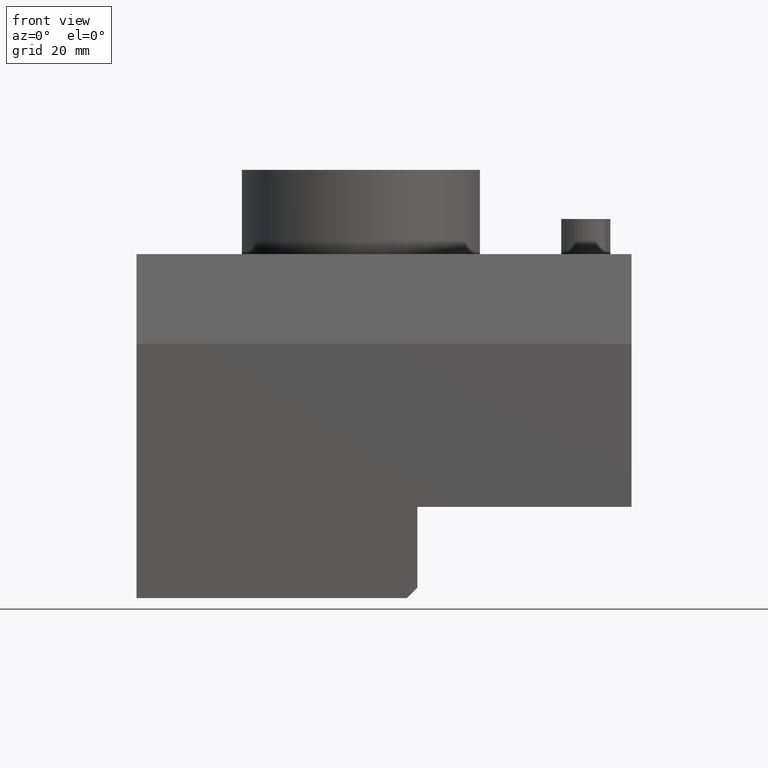
[diagram: clean part render]
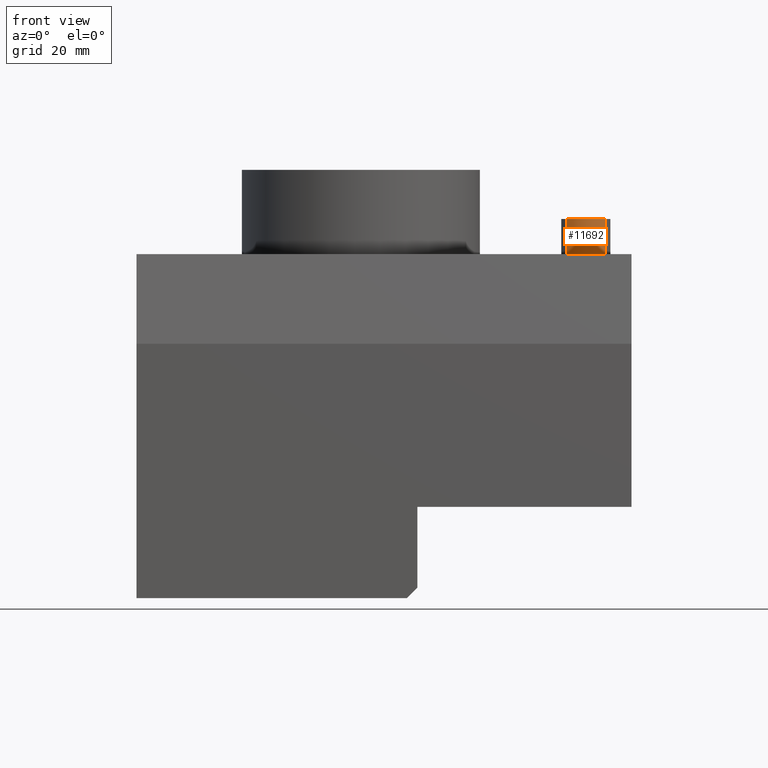
[diagram: same view with one face highlighted and labeled with its STEP entity id]
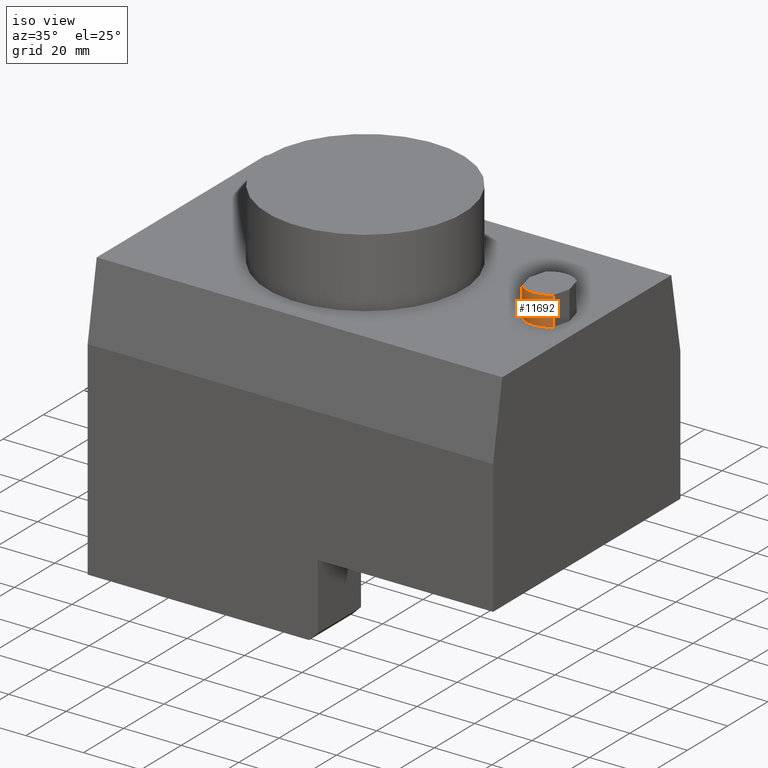
[diagram: same view with one face highlighted and labeled with its STEP entity id]
A machine part, front view. The second image highlights one B-rep face of the part: STEP entity #11692.
A second angle (iso view) of the same face is appended — the face is thin or edge-on in the first view.
In plain terms, the highlighted cylindrical surface (edge-blend (fillet) strip) has radius 8 mm, axis along (0, 0, 1).
Its self-contained STEP definition (entity closure, byte-faithful):
#6519 = PLANE('',#6520);
#6520 = AXIS2_PLACEMENT_3D('',#6521,#6522,#6523);
#6521 = CARTESIAN_POINT('',(-64.,-42.,6.490409630726E-015));
#6522 = DIRECTION('',(0.E+000,0.E+000,-1.));
#6523 = DIRECTION('',(1.,0.E+000,0.E+000));
#6544 = VERTEX_POINT('',#6545);
#6545 = CARTESIAN_POINT('',(69.42443310456,-5.880095704507,
    6.490409630726E-015));
#6559 = PLANE('',#6560);
#6560 = AXIS2_PLACEMENT_3D('',#6561,#6562,#6563);
#6561 = CARTESIAN_POINT('',(71.,1.355252715607E-016,10.));
#6562 = DIRECTION('',(0.965925826289,-0.258819045103,0.E+000));
#6563 = DIRECTION('',(0.258819045103,0.965925826289,0.E+000));
#6571 = EDGE_CURVE('',#6544,#6572,#6574,.T.);
#6572 = VERTEX_POINT('',#6573);
#6573 = CARTESIAN_POINT('',(58.57556689544,-5.880095704507,
    6.490409630726E-015));
#6574 = SURFACE_CURVE('',#6575,(#6580,#6587),.PCURVE_S1.);
#6575 = CIRCLE('',#6576,8.);
#6576 = AXIS2_PLACEMENT_3D('',#6577,#6578,#6579);
#6577 = CARTESIAN_POINT('',(64.,0.E+000,6.490409630726E-015));
#6578 = DIRECTION('',(-0.E+000,-0.E+000,-1.));
#6579 = DIRECTION('',(-1.,0.E+000,0.E+000));
#6580 = PCURVE('',#6519,#6581);
#6581 = DEFINITIONAL_REPRESENTATION('',(#6582),#6586);
#6582 = CIRCLE('',#6583,8.);
#6583 = AXIS2_PLACEMENT_2D('',#6584,#6585);
#6584 = CARTESIAN_POINT('',(128.,-42.));
#6585 = DIRECTION('',(-1.,0.E+000));
#6586 = ( GEOMETRIC_REPRESENTATION_CONTEXT(2) 
PARAMETRIC_REPRESENTATION_CONTEXT() REPRESENTATION_CONTEXT('2D SPACE',''
  ) );
#6587 = PCURVE('',#6588,#6593);
#6588 = CYLINDRICAL_SURFACE('',#6589,8.);
#6589 = AXIS2_PLACEMENT_3D('',#6590,#6591,#6592);
#6590 = CARTESIAN_POINT('',(64.,0.E+000,10.));
#6591 = DIRECTION('',(0.E+000,0.E+000,1.));
#6592 = DIRECTION('',(1.,0.E+000,0.E+000));
#6593 = DEFINITIONAL_REPRESENTATION('',(#6594),#6597);
#6594 = B_SPLINE_CURVE_WITH_KNOTS('',1,(#6595,#6596),.UNSPECIFIED.,.F.,
  .F.,(2,2),(3.967276977634,5.457500983135),.PIECEWISE_BEZIER_KNOTS.);
#6595 = CARTESIAN_POINT('',(5.457500983135,-10.));
#6596 = CARTESIAN_POINT('',(3.967276977634,-10.));
#6597 = ( GEOMETRIC_REPRESENTATION_CONTEXT(2) 
PARAMETRIC_REPRESENTATION_CONTEXT() REPRESENTATION_CONTEXT('2D SPACE',''
  ) );
#6615 = PLANE('',#6616);
#6616 = AXIS2_PLACEMENT_3D('',#6617,#6618,#6619);
#6617 = CARTESIAN_POINT('',(57.,0.E+000,10.));
#6618 = DIRECTION('',(-0.965925826289,-0.258819045103,0.E+000));
#6619 = DIRECTION('',(0.258819045103,-0.965925826289,0.E+000));
#11428 = VERTEX_POINT('',#11429);
#11429 = CARTESIAN_POINT('',(69.42443310456,-5.880095704507,10.));
#11436 = PLANE('',#11437);
#11437 = AXIS2_PLACEMENT_3D('',#11438,#11439,#11440);
#11438 = CARTESIAN_POINT('',(64.,0.E+000,10.));
#11439 = DIRECTION('',(0.E+000,0.E+000,-1.));
#11440 = DIRECTION('',(1.,0.E+000,0.E+000));
#11525 = VERTEX_POINT('',#11526);
#11526 = CARTESIAN_POINT('',(58.57556689544,-5.880095704507,10.));
#11547 = EDGE_CURVE('',#11428,#11525,#11548,.T.);
#11548 = SURFACE_CURVE('',#11549,(#11554,#11561),.PCURVE_S1.);
#11549 = CIRCLE('',#11550,8.);
#11550 = AXIS2_PLACEMENT_3D('',#11551,#11552,#11553);
#11551 = CARTESIAN_POINT('',(64.,0.E+000,10.));
#11552 = DIRECTION('',(-0.E+000,-0.E+000,-1.));
#11553 = DIRECTION('',(-1.,0.E+000,0.E+000));
#11554 = PCURVE('',#11436,#11555);
#11555 = DEFINITIONAL_REPRESENTATION('',(#11556),#11560);
#11556 = CIRCLE('',#11557,8.);
#11557 = AXIS2_PLACEMENT_2D('',#11558,#11559);
#11558 = CARTESIAN_POINT('',(0.E+000,0.E+000));
#11559 = DIRECTION('',(-1.,0.E+000));
#11560 = ( GEOMETRIC_REPRESENTATION_CONTEXT(2) 
PARAMETRIC_REPRESENTATION_CONTEXT() REPRESENTATION_CONTEXT('2D SPACE',''
  ) );
#11561 = PCURVE('',#6588,#11562);
#11562 = DEFINITIONAL_REPRESENTATION('',(#11563),#11566);
#11563 = B_SPLINE_CURVE_WITH_KNOTS('',1,(#11564,#11565),.UNSPECIFIED.,
  .F.,.F.,(2,2),(3.967276977634,5.457500983135),
  .PIECEWISE_BEZIER_KNOTS.);
#11564 = CARTESIAN_POINT('',(5.457500983135,0.E+000));
#11565 = CARTESIAN_POINT('',(3.967276977634,0.E+000));
#11566 = ( GEOMETRIC_REPRESENTATION_CONTEXT(2) 
PARAMETRIC_REPRESENTATION_CONTEXT() REPRESENTATION_CONTEXT('2D SPACE',''
  ) );
#11671 = EDGE_CURVE('',#11525,#6572,#11672,.T.);
#11672 = SURFACE_CURVE('',#11673,(#11677,#11684),.PCURVE_S1.);
#11673 = LINE('',#11674,#11675);
#11674 = CARTESIAN_POINT('',(58.57556689544,-5.880095704507,10.));
#11675 = VECTOR('',#11676,1.);
#11676 = DIRECTION('',(0.E+000,0.E+000,-1.));
#11677 = PCURVE('',#6615,#11678);
#11678 = DEFINITIONAL_REPRESENTATION('',(#11679),#11683);
#11679 = LINE('',#11680,#11681);
#11680 = CARTESIAN_POINT('',(6.087523021407,0.E+000));
#11681 = VECTOR('',#11682,1.);
#11682 = DIRECTION('',(0.E+000,-1.));
#11683 = ( GEOMETRIC_REPRESENTATION_CONTEXT(2) 
PARAMETRIC_REPRESENTATION_CONTEXT() REPRESENTATION_CONTEXT('2D SPACE',''
  ) );
#11684 = PCURVE('',#6588,#11685);
#11685 = DEFINITIONAL_REPRESENTATION('',(#11686),#11689);
#11686 = B_SPLINE_CURVE_WITH_KNOTS('',1,(#11687,#11688),.UNSPECIFIED.,
  .F.,.F.,(2,2),(0.E+000,10.),.PIECEWISE_BEZIER_KNOTS.);
#11687 = CARTESIAN_POINT('',(3.967276977634,0.E+000));
#11688 = CARTESIAN_POINT('',(3.967276977634,-10.));
#11689 = ( GEOMETRIC_REPRESENTATION_CONTEXT(2) 
PARAMETRIC_REPRESENTATION_CONTEXT() REPRESENTATION_CONTEXT('2D SPACE',''
  ) );
#11692 = ADVANCED_FACE('',(#11693),#6588,.T.);
#11693 = FACE_BOUND('',#11694,.T.);
#11694 = EDGE_LOOP('',(#11695,#11696,#11716,#11717));
#11695 = ORIENTED_EDGE('',*,*,#6571,.F.);
#11696 = ORIENTED_EDGE('',*,*,#11697,.F.);
#11697 = EDGE_CURVE('',#11428,#6544,#11698,.T.);
#11698 = SURFACE_CURVE('',#11699,(#11703,#11709),.PCURVE_S1.);
#11699 = LINE('',#11700,#11701);
#11700 = CARTESIAN_POINT('',(69.42443310456,-5.880095704507,10.));
#11701 = VECTOR('',#11702,1.);
#11702 = DIRECTION('',(0.E+000,0.E+000,-1.));
#11703 = PCURVE('',#6588,#11704);
#11704 = DEFINITIONAL_REPRESENTATION('',(#11705),#11708);
#11705 = B_SPLINE_CURVE_WITH_KNOTS('',1,(#11706,#11707),.UNSPECIFIED.,
  .F.,.F.,(2,2),(0.E+000,10.),.PIECEWISE_BEZIER_KNOTS.);
#11706 = CARTESIAN_POINT('',(5.457500983135,0.E+000));
#11707 = CARTESIAN_POINT('',(5.457500983135,-10.));
#11708 = ( GEOMETRIC_REPRESENTATION_CONTEXT(2) 
PARAMETRIC_REPRESENTATION_CONTEXT() REPRESENTATION_CONTEXT('2D SPACE',''
  ) );
#11709 = PCURVE('',#6559,#11710);
#11710 = DEFINITIONAL_REPRESENTATION('',(#11711),#11715);
#11711 = LINE('',#11712,#11713);
#11712 = CARTESIAN_POINT('',(-6.087523021407,0.E+000));
#11713 = VECTOR('',#11714,1.);
#11714 = DIRECTION('',(0.E+000,-1.));
#11715 = ( GEOMETRIC_REPRESENTATION_CONTEXT(2) 
PARAMETRIC_REPRESENTATION_CONTEXT() REPRESENTATION_CONTEXT('2D SPACE',''
  ) );
#11716 = ORIENTED_EDGE('',*,*,#11547,.T.);
#11717 = ORIENTED_EDGE('',*,*,#11671,.T.);